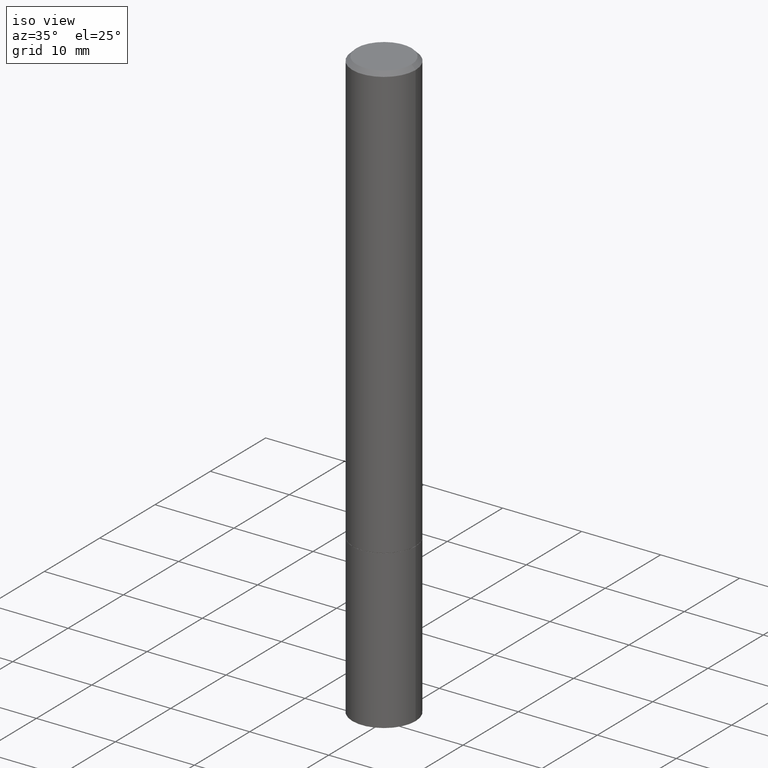
[diagram: clean part render]
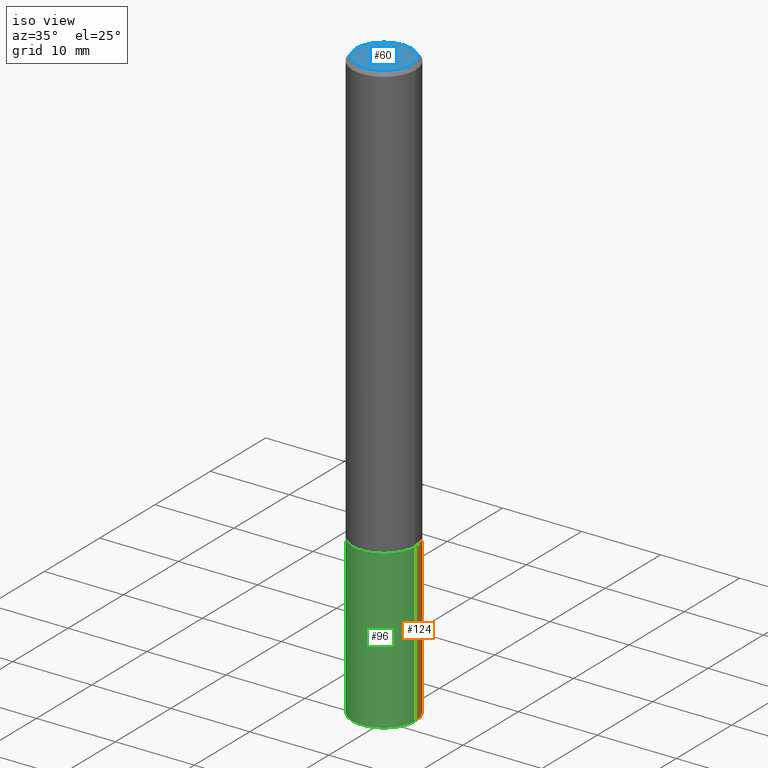
[diagram: same view with three faces highlighted in distinct colors, each labeled with its STEP entity id]
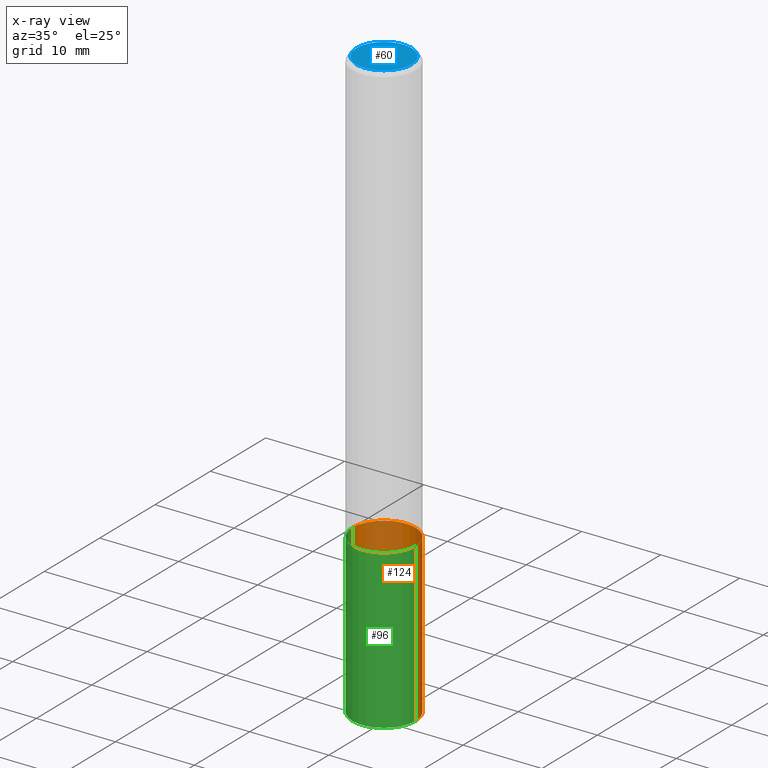
[diagram: x-ray of the same camera — body ghosted, the three highlighted faces saturated]
A machine part, iso view with three faces highlighted in distinct colors.
The next image is the same camera in x-ray (body ghosted, the three faces saturated) — at least one of them is partly hidden behind the body in this view.
Their STEP definitions:

[orange] entity #124 — the highlighted cylindrical surface (partial cylindrical patch) has radius 4.0005 mm, axis along (-0, 0, 1).
#17 = CARTESIAN_POINT ( 'NONE',  ( 7.220980290903470182E-29, -1.030964609733603853E-14, -2.952799999999999869 ) ) ;
#20 = DIRECTION ( 'NONE',  ( 1.000000000000000000, -6.982962677686261977E-15, 0.000000000000000000 ) ) ;
#23 = DIRECTION ( 'NONE',  ( -2.445468806185136597E-29, 3.491481338843145583E-15, 1.000000000000000000 ) ) ;
#25 = EDGE_CURVE ( 'NONE', #241, #180, #301, .T. ) ;
#26 = DIRECTION ( 'NONE',  ( 1.000000000000000000, -6.982962677686268288E-15, 0.000000000000000000 ) ) ;
#45 = DIRECTION ( 'NONE',  ( -2.445468806185136597E-29, 3.491481338843145583E-15, 1.000000000000000000 ) ) ;
#58 = CARTESIAN_POINT ( 'NONE',  ( 5.295418152913294345E-29, -7.560453691130947423E-15, -2.165399999999999991 ) ) ;
#119 = EDGE_CURVE ( 'NONE', #180, #271, #189, .T. ) ;
#123 = ORIENTED_EDGE ( 'NONE', *, *, #260, .F. ) ;
#124 = ADVANCED_FACE ( 'NONE', ( #138 ), #223, .T. ) ;
#136 = VECTOR ( 'NONE', #303, 39.37007874015748143 ) ;
#138 = FACE_OUTER_BOUND ( 'NONE', #237, .T. ) ;
#145 = CARTESIAN_POINT ( 'NONE',  ( -0.1575000000000000011, -7.815945085411336161E-15, -2.165399999999999991 ) ) ;
#164 = CARTESIAN_POINT ( 'NONE',  ( -0.1575000000000000011, 1.119104808822157801E-15, -7.747322767151475583E-30 ) ) ;
#180 = VERTEX_POINT ( 'NONE', #245 ) ;
#189 = LINE ( 'NONE', #164, #136 ) ;
#194 = DIRECTION ( 'NONE',  ( -2.445468806185136597E-29, 3.491481338843145583E-15, 1.000000000000000000 ) ) ;
#200 = ORIENTED_EDGE ( 'NONE', *, *, #25, .T. ) ;
#214 = AXIS2_PLACEMENT_3D ( 'NONE', #304, #45, #276 ) ;
#215 = ORIENTED_EDGE ( 'NONE', *, *, #255, .F. ) ;
#219 = AXIS2_PLACEMENT_3D ( 'NONE', #17, #194, #20 ) ;
#223 = CYLINDRICAL_SURFACE ( 'NONE', #214, 0.1575000000000000011 ) ;
#224 = CARTESIAN_POINT ( 'NONE',  ( 0.1575000000000000011, -1.140946271907162522E-14, -2.952799999999999869 ) ) ;
#228 = DIRECTION ( 'NONE',  ( -2.445468806185136877E-29, 3.491481338843145188E-15, 1.000000000000000000 ) ) ;
#237 = EDGE_LOOP ( 'NONE', ( #200, #269, #215, #123 ) ) ;
#241 = VERTEX_POINT ( 'NONE', #224 ) ;
#245 = CARTESIAN_POINT ( 'NONE',  ( -0.1575000000000000011, -7.815945085411336161E-15, -2.952799999999999869 ) ) ;
#255 = EDGE_CURVE ( 'NONE', #354, #271, #356, .T. ) ;
#256 = CARTESIAN_POINT ( 'NONE',  ( 0.1575000000000000011, -1.099816621735586889E-15, 7.679978421878598033E-30 ) ) ;
#260 = EDGE_CURVE ( 'NONE', #241, #354, #339, .T. ) ;
#269 = ORIENTED_EDGE ( 'NONE', *, *, #119, .T. ) ;
#271 = VERTEX_POINT ( 'NONE', #145 ) ;
#276 = DIRECTION ( 'NONE',  ( 1.000000000000000000, -6.982962677686265922E-15, 4.876176775795935232E-29 ) ) ;
#278 = VECTOR ( 'NONE', #228, 39.37007874015748143 ) ;
#282 = AXIS2_PLACEMENT_3D ( 'NONE', #58, #23, #26 ) ;
#301 = CIRCLE ( 'NONE', #219, 0.1575000000000000011 ) ;
#303 = DIRECTION ( 'NONE',  ( -2.445468806185136877E-29, 3.491481338843145188E-15, 1.000000000000000000 ) ) ;
#304 = CARTESIAN_POINT ( 'NONE',  ( 0.000000000000000000, 0.000000000000000000, 0.000000000000000000 ) ) ;
#310 = CARTESIAN_POINT ( 'NONE',  ( 0.1575000000000000011, -8.660270312866534114E-15, -2.165399999999999991 ) ) ;
#339 = LINE ( 'NONE', #256, #278 ) ;
#354 = VERTEX_POINT ( 'NONE', #310 ) ;
#356 = CIRCLE ( 'NONE', #282, 0.1575000000000000011 ) ;

[blue] entity #60 — the highlighted planar face has unit normal (0, -0, -1).
#21 = CARTESIAN_POINT ( 'NONE',  ( 9.601573681818595033E-16, 0.1374999999999997058, -4.779444278458812147E-16 ) ) ;
#39 = VERTEX_POINT ( 'NONE', #137 ) ;
#46 = DIRECTION ( 'NONE',  ( -1.000000000000000000, 6.982962677686265922E-15, -4.876176775795935793E-29 ) ) ;
#60 = ADVANCED_FACE ( 'NONE', ( #110 ), #337, .F. ) ;
#73 = ORIENTED_EDGE ( 'NONE', *, *, #357, .T. ) ;
#99 = CIRCLE ( 'NONE', #307, 0.1374999999999997058 ) ;
#109 = DIRECTION ( 'NONE',  ( 2.438088387897960049E-29, -3.491481338843145188E-15, -1.000000000000000000 ) ) ;
#110 = FACE_OUTER_BOUND ( 'NONE', #157, .T. ) ;
#116 = CARTESIAN_POINT ( 'NONE',  ( 0.1374999999999997058, -1.046838268059730322E-15, 4.268512490107428597E-18 ) ) ;
#120 = DIRECTION ( 'NONE',  ( 1.000000000000000000, -6.982962677686265922E-15, 4.876173381029110692E-29 ) ) ;
#121 = CIRCLE ( 'NONE', #272, 0.1374999999999997058 ) ;
#137 = CARTESIAN_POINT ( 'NONE',  ( -0.1374999999999997058, 9.950721815702905608E-16, 4.268512490093574228E-18 ) ) ;
#142 = DIRECTION ( 'NONE',  ( -2.445468806185136597E-29, 3.491481338843145583E-15, 1.000000000000000000 ) ) ;
#157 = EDGE_LOOP ( 'NONE', ( #73, #243 ) ) ;
#198 = DIRECTION ( 'NONE',  ( -2.445468806185136597E-29, 3.491481338843145583E-15, 1.000000000000000000 ) ) ;
#217 = VERTEX_POINT ( 'NONE', #116 ) ;
#225 = DIRECTION ( 'NONE',  ( 1.000000000000000000, -6.982962677686265922E-15, 4.876173381029110692E-29 ) ) ;
#243 = ORIENTED_EDGE ( 'NONE', *, *, #295, .T. ) ;
#254 = CARTESIAN_POINT ( 'NONE',  ( -1.043851414335219820E-46, 1.490343170380447200E-32, 4.268512490100411279E-18 ) ) ;
#272 = AXIS2_PLACEMENT_3D ( 'NONE', #315, #198, #225 ) ;
#295 = EDGE_CURVE ( 'NONE', #217, #39, #99, .T. ) ;
#307 = AXIS2_PLACEMENT_3D ( 'NONE', #254, #142, #120 ) ;
#315 = CARTESIAN_POINT ( 'NONE',  ( -1.043851414335219820E-46, 1.490343170380447200E-32, 4.268512490100411279E-18 ) ) ;
#337 = PLANE ( 'NONE',  #346 ) ;
#346 = AXIS2_PLACEMENT_3D ( 'NONE', #21, #109, #46 ) ;
#357 = EDGE_CURVE ( 'NONE', #39, #217, #121, .T. ) ;

[green] entity #96 — the highlighted cylindrical surface (partial cylindrical patch) has radius 4.0005 mm, axis along (-0, 0, 1).
#49 = EDGE_CURVE ( 'NONE', #271, #354, #229, .T. ) ;
#51 = DIRECTION ( 'NONE',  ( 1.000000000000000000, -6.982962677686265922E-15, 4.876176775795935232E-29 ) ) ;
#74 = CYLINDRICAL_SURFACE ( 'NONE', #181, 0.1575000000000000011 ) ;
#76 = DIRECTION ( 'NONE',  ( -2.445468806185136597E-29, 3.491481338843145583E-15, 1.000000000000000000 ) ) ;
#80 = CARTESIAN_POINT ( 'NONE',  ( 0.000000000000000000, 0.000000000000000000, 0.000000000000000000 ) ) ;
#81 = AXIS2_PLACEMENT_3D ( 'NONE', #160, #250, #361 ) ;
#96 = ADVANCED_FACE ( 'NONE', ( #252 ), #74, .T. ) ;
#106 = AXIS2_PLACEMENT_3D ( 'NONE', #201, #202, #289 ) ;
#119 = EDGE_CURVE ( 'NONE', #180, #271, #189, .T. ) ;
#136 = VECTOR ( 'NONE', #303, 39.37007874015748143 ) ;
#145 = CARTESIAN_POINT ( 'NONE',  ( -0.1575000000000000011, -7.815945085411336161E-15, -2.165399999999999991 ) ) ;
#160 = CARTESIAN_POINT ( 'NONE',  ( 5.295418152913294345E-29, -7.560453691130947423E-15, -2.165399999999999991 ) ) ;
#164 = CARTESIAN_POINT ( 'NONE',  ( -0.1575000000000000011, 1.119104808822157801E-15, -7.747322767151475583E-30 ) ) ;
#180 = VERTEX_POINT ( 'NONE', #245 ) ;
#181 = AXIS2_PLACEMENT_3D ( 'NONE', #80, #76, #51 ) ;
#186 = EDGE_LOOP ( 'NONE', ( #285, #350, #323, #291 ) ) ;
#189 = LINE ( 'NONE', #164, #136 ) ;
#201 = CARTESIAN_POINT ( 'NONE',  ( 7.220980290903470182E-29, -1.030964609733603853E-14, -2.952799999999999869 ) ) ;
#202 = DIRECTION ( 'NONE',  ( -2.445468806185136597E-29, 3.491481338843145583E-15, 1.000000000000000000 ) ) ;
#224 = CARTESIAN_POINT ( 'NONE',  ( 0.1575000000000000011, -1.140946271907162522E-14, -2.952799999999999869 ) ) ;
#227 = EDGE_CURVE ( 'NONE', #180, #241, #251, .T. ) ;
#228 = DIRECTION ( 'NONE',  ( -2.445468806185136877E-29, 3.491481338843145188E-15, 1.000000000000000000 ) ) ;
#229 = CIRCLE ( 'NONE', #81, 0.1575000000000000011 ) ;
#241 = VERTEX_POINT ( 'NONE', #224 ) ;
#245 = CARTESIAN_POINT ( 'NONE',  ( -0.1575000000000000011, -7.815945085411336161E-15, -2.952799999999999869 ) ) ;
#250 = DIRECTION ( 'NONE',  ( -2.445468806185136597E-29, 3.491481338843145583E-15, 1.000000000000000000 ) ) ;
#251 = CIRCLE ( 'NONE', #106, 0.1575000000000000011 ) ;
#252 = FACE_OUTER_BOUND ( 'NONE', #186, .T. ) ;
#256 = CARTESIAN_POINT ( 'NONE',  ( 0.1575000000000000011, -1.099816621735586889E-15, 7.679978421878598033E-30 ) ) ;
#260 = EDGE_CURVE ( 'NONE', #241, #354, #339, .T. ) ;
#271 = VERTEX_POINT ( 'NONE', #145 ) ;
#278 = VECTOR ( 'NONE', #228, 39.37007874015748143 ) ;
#285 = ORIENTED_EDGE ( 'NONE', *, *, #119, .F. ) ;
#289 = DIRECTION ( 'NONE',  ( 1.000000000000000000, -6.982962677686261977E-15, 0.000000000000000000 ) ) ;
#291 = ORIENTED_EDGE ( 'NONE', *, *, #49, .F. ) ;
#303 = DIRECTION ( 'NONE',  ( -2.445468806185136877E-29, 3.491481338843145188E-15, 1.000000000000000000 ) ) ;
#310 = CARTESIAN_POINT ( 'NONE',  ( 0.1575000000000000011, -8.660270312866534114E-15, -2.165399999999999991 ) ) ;
#323 = ORIENTED_EDGE ( 'NONE', *, *, #260, .T. ) ;
#339 = LINE ( 'NONE', #256, #278 ) ;
#350 = ORIENTED_EDGE ( 'NONE', *, *, #227, .T. ) ;
#354 = VERTEX_POINT ( 'NONE', #310 ) ;
#361 = DIRECTION ( 'NONE',  ( 1.000000000000000000, -6.982962677686268288E-15, 0.000000000000000000 ) ) ;